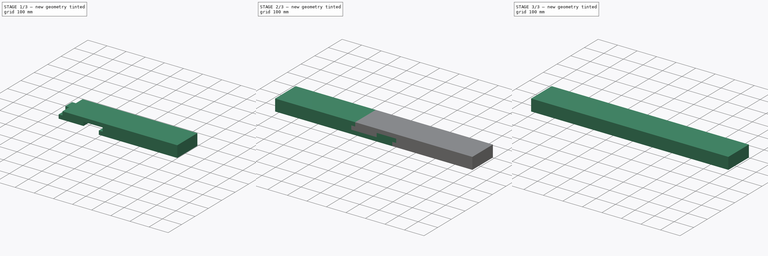
[diagram: build sequence overview — one tinted view per stage of 3, left to right]
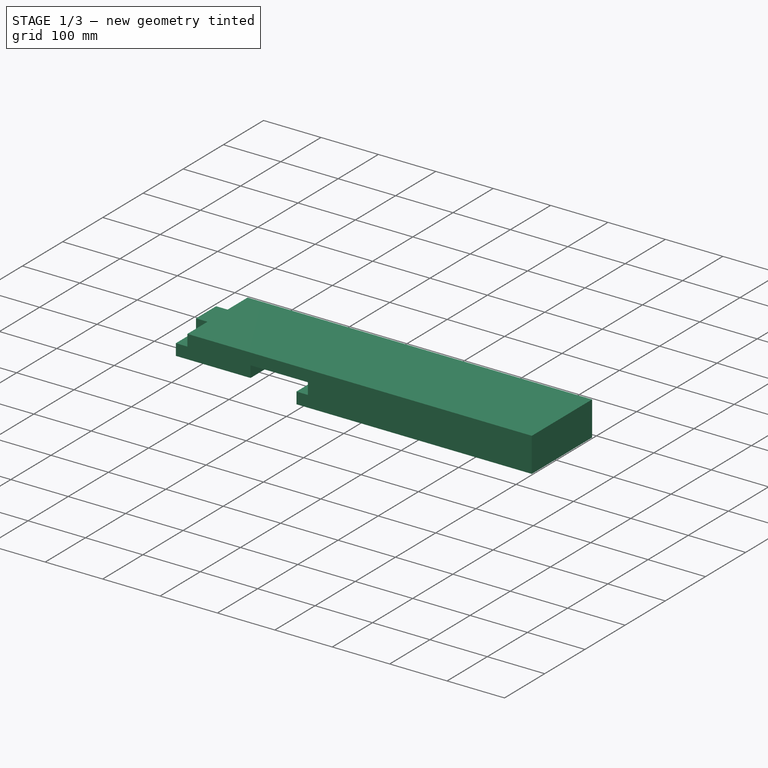
[diagram: stage 1 of 3 — iso view after this stage's code; geometry added in this stage tinted green]
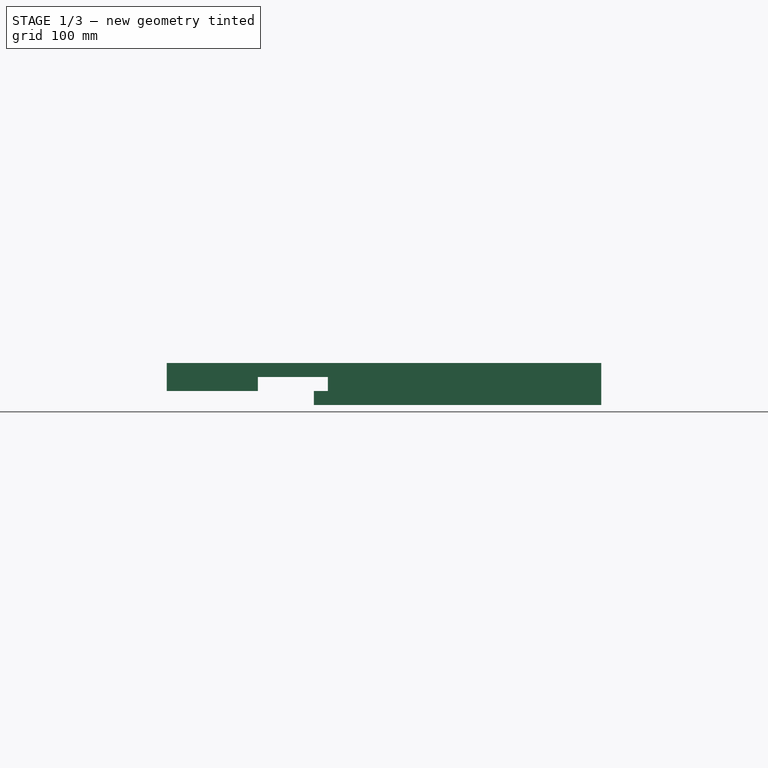
[diagram: stage 1 of 3 — front view after this stage's code; geometry added in this stage tinted green]
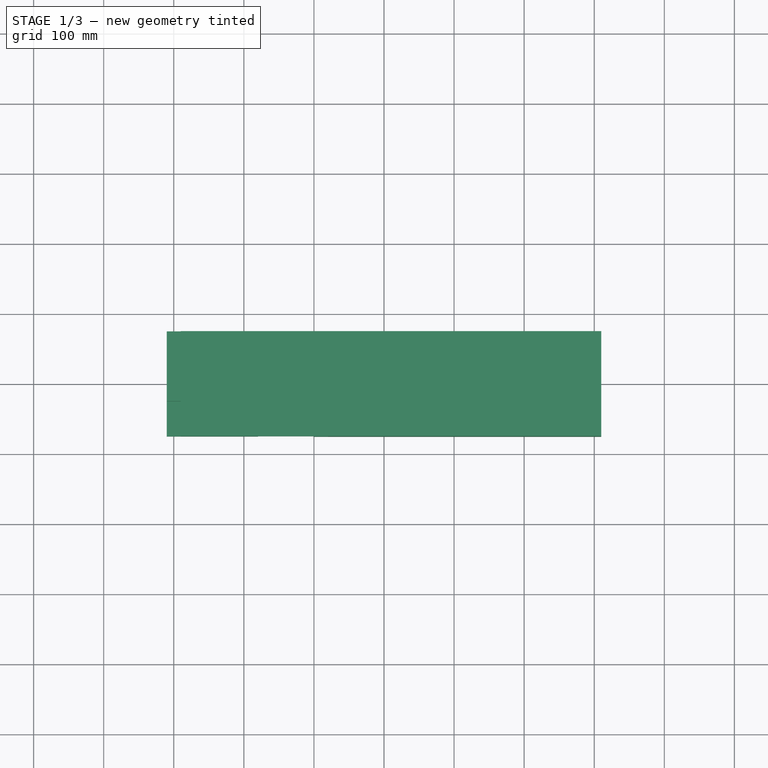
[diagram: stage 1 of 3 — top view after this stage's code; geometry added in this stage tinted green]
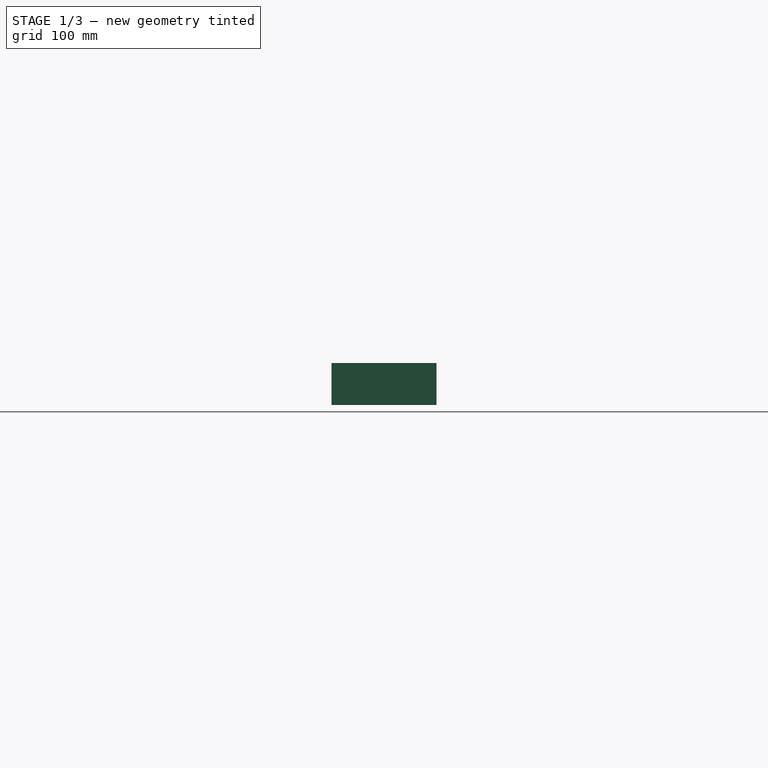
[diagram: stage 1 of 3 — right view after this stage's code; geometry added in this stage tinted green]
FCSTD DOCUMENT  (FreeCAD 0.18R13516 (Git))
Label: VIGA MADEIRA 2
License: All rights reserved
LicenseURL: http://en.wikipedia.org/wiki/All_rights_reserved
objects: Part::Box×2, PartDesign::FeatureBase×2, Sketcher::SketchObject×1, PartDesign::Pad×1, PartDesign::Body×1, Part::MultiFuse×1, Part::Cut×1, Part::Feature×1
note: 11 computed .brp shape members not serialized (recipe doc carries the construction recipe); baked Part::Feature solids carry a one-line shape summary decoded from their .brp

FEATURE [Part::Feature] Cut001
  shape: bbox 620 x 150 x 60 mm, 22 faces (baked)
FEATURE [PartDesign::FeatureBase] Clone001
  BaseFeature = -> Cut001
  Placement = pos=(-190,0,60) rot=(0,1,0;3.14159rad)
FEATURE [Part::Box] Box001  label="Cube001"
  AttacherType = Attacher::AttachEngine3D
  Height = 20
  Length = 30
  Placement = pos=(-110,-75,20) rot=(0,0,1;0rad)
  Width = 150
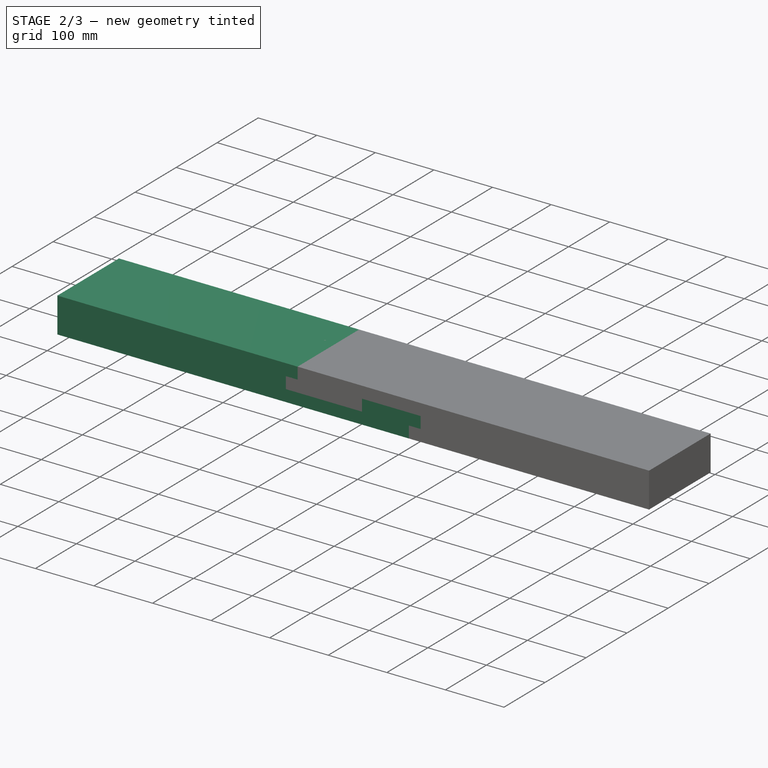
[diagram: stage 2 of 3 — iso view after this stage's code; geometry added in this stage tinted green]
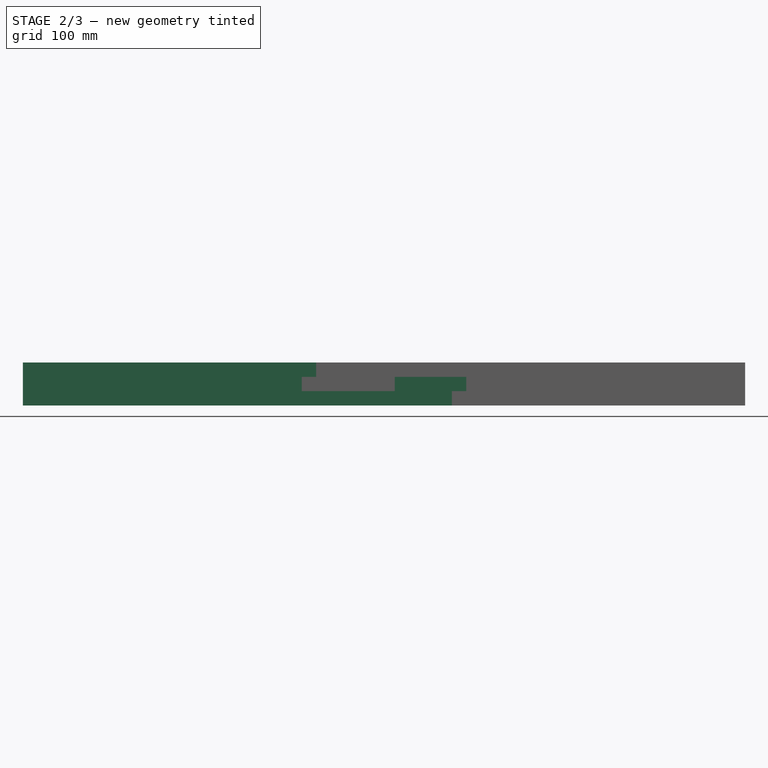
[diagram: stage 2 of 3 — front view after this stage's code; geometry added in this stage tinted green]
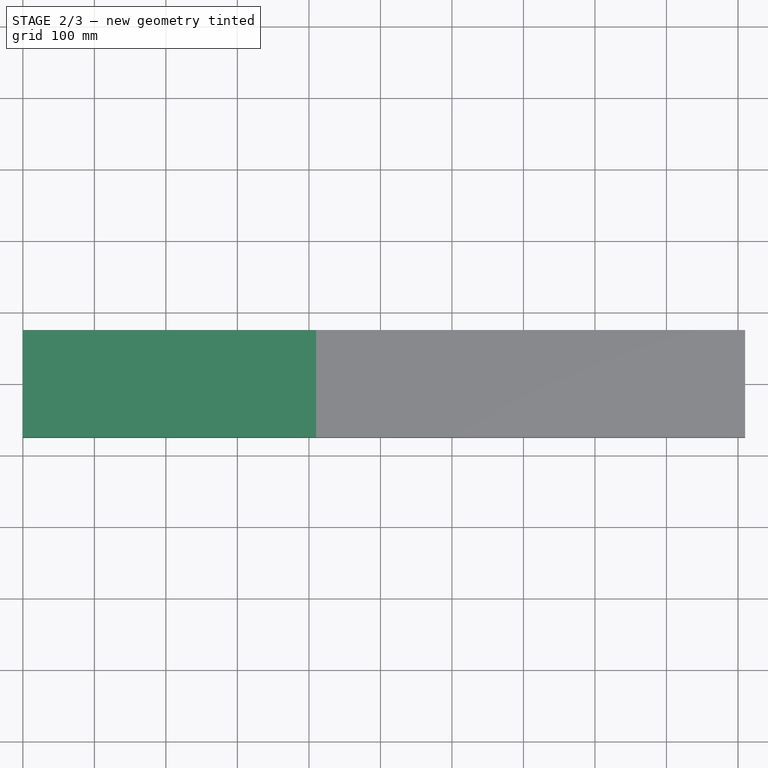
[diagram: stage 2 of 3 — top view after this stage's code; geometry added in this stage tinted green]
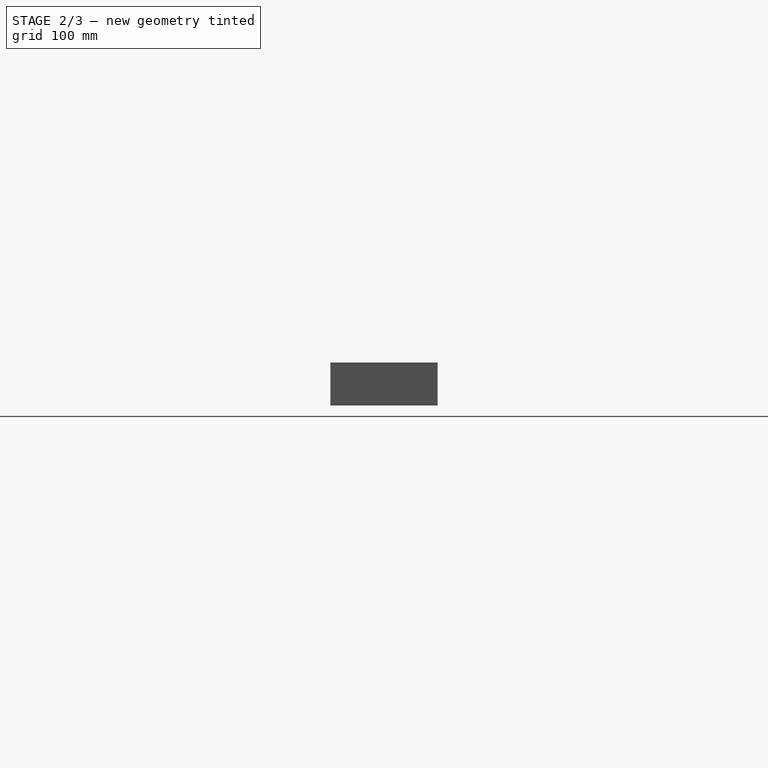
[diagram: stage 2 of 3 — right view after this stage's code; geometry added in this stage tinted green]
FEATURE [Sketcher::SketchObject] Sketch
  MapMode = 5
  Placement = pos=(0,0,0) rot=(1,0,0;1.5708rad)
  Support = -> [XZ_Plane]
  sketch-geometry (12):
    g0: LineSegment StartX=0 StartY=0 StartZ=0 EndX=0 EndY=20 EndZ=0
    g1: LineSegment StartX=20 StartY=40 StartZ=0 EndX=-80 EndY=40 EndZ=0
    g2: LineSegment StartX=-80 StartY=40 StartZ=0 EndX=-80 EndY=20 EndZ=0
    g3: LineSegment StartX=-80 StartY=20 StartZ=0 EndX=-210 EndY=20 EndZ=0
    g4: LineSegment StartX=-210 StartY=20 StartZ=0 EndX=-210 EndY=40 EndZ=0
    g5: LineSegment StartX=-210 StartY=40 StartZ=0 EndX=-190 EndY=40 EndZ=0
    g6: LineSegment StartX=-190 StartY=40 StartZ=0 EndX=-190 EndY=60 EndZ=0
    g7: LineSegment StartX=-190 StartY=60 StartZ=0 EndX=-600 EndY=60 EndZ=0
    g8: LineSegment StartX=-600 StartY=60 StartZ=0 EndX=-600 EndY=0 EndZ=0
    g9: LineSegment StartX=-600 StartY=0 StartZ=0 EndX=0 EndY=0 EndZ=0
    g10: LineSegment StartX=20 StartY=40 StartZ=0 EndX=20 EndY=20 EndZ=0
    g11: LineSegment StartX=20 StartY=20 StartZ=0 EndX=0 EndY=20 EndZ=0
  constraints (35):
    c: Coincident(g-1,g0)
    c: Vertical(g0)
    c: Horizontal(g1)
    c: Coincident(g1,g2)
    c: Vertical(g2)
    c: Coincident(g2,g3)
    c: Horizontal(g3)
    c: Coincident(g3,g4)
    c: Vertical(g4)
    c: Coincident(g4,g5)
    c: Horizontal(g5)
    c: Coincident(g5,g6)
    c: Vertical(g6)
    c: Coincident(g6,g7)
    c: Horizontal(g7)
    c: Coincident(g7,g8)
    c: PointOnObject(g8,g-1)
    c: Coincident(g8,g9)
    c: Coincident(g9,g0)
    c: Vertical(g8)
    c: Equal(g4,g2)
    c: Equal(g4,g5)
    c: Equal(g5,g6)
    c: DistanceY(g8,g8) = 60
    c: DistanceX(g9,g9) = 600
    c: DistanceX(g1,g1) = 100
    c: DistanceX(g3,g3) = 130
    c: Coincident(g1,g10)
    c: Vertical(g10)
    c: Coincident(g10,g11)
    c: Coincident(g11,g0)
    c: Horizontal(g11)
    c: Equal(g2,g10)
    c: Equal(g10,g11)
    c: Equal(g10,g0)
FEATURE [PartDesign::Pad] Pad
  Length = 150
  Length2 = 100
  Midplane = true
  Placement = pos=(0,0,0) rot=(1,0,0;1.5708rad)
  Profile = -> Sketch
  Type = 0
FEATURE [PartDesign::Body] Body
  Group = -> [Sketch,Pad]
  Origin = -> Origin
  Tip = -> Pad
FEATURE [Part::Box] Box  label="Cube"
  AttacherType = Attacher::AttachEngine3D
  Height = 20
  Length = 20
  Placement = pos=(0,-25,0) rot=(0,0,1;0rad)
  Width = 50
FEATURE [Part::MultiFuse] Fusion
  Shapes = -> [Pad,Box]
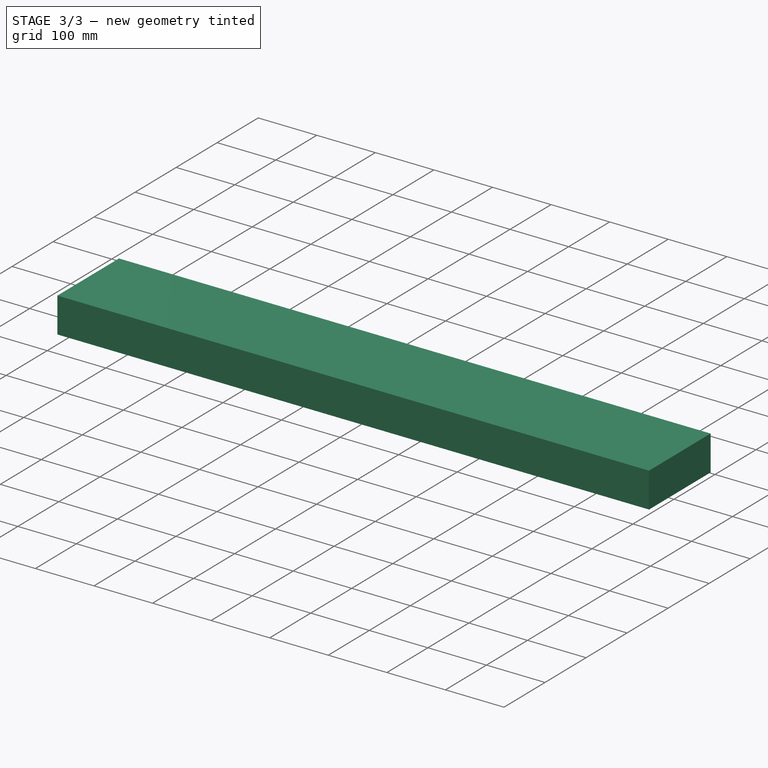
[diagram: stage 3 of 3 — iso view after this stage's code; geometry added in this stage tinted green]
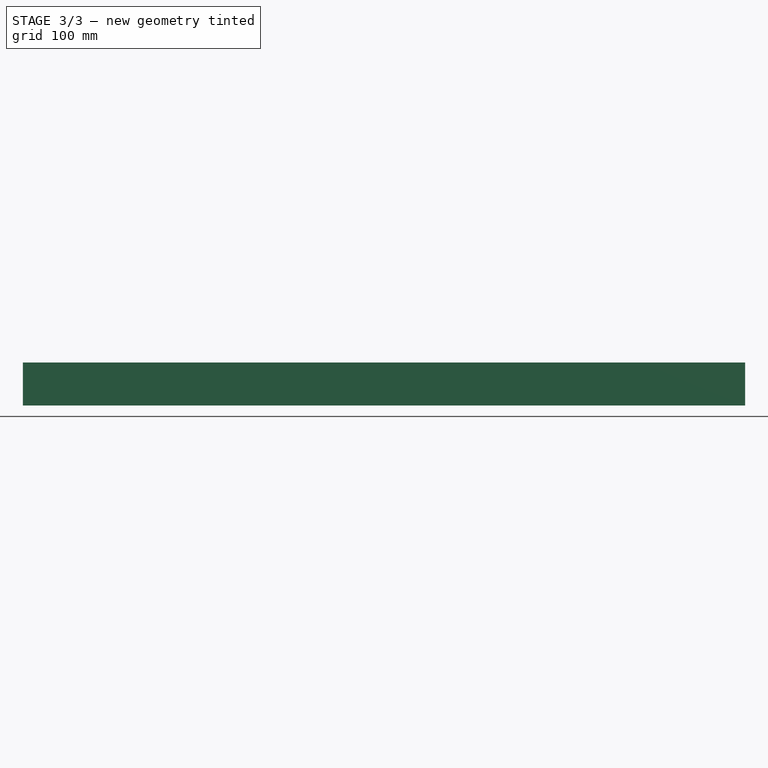
[diagram: stage 3 of 3 — front view after this stage's code; geometry added in this stage tinted green]
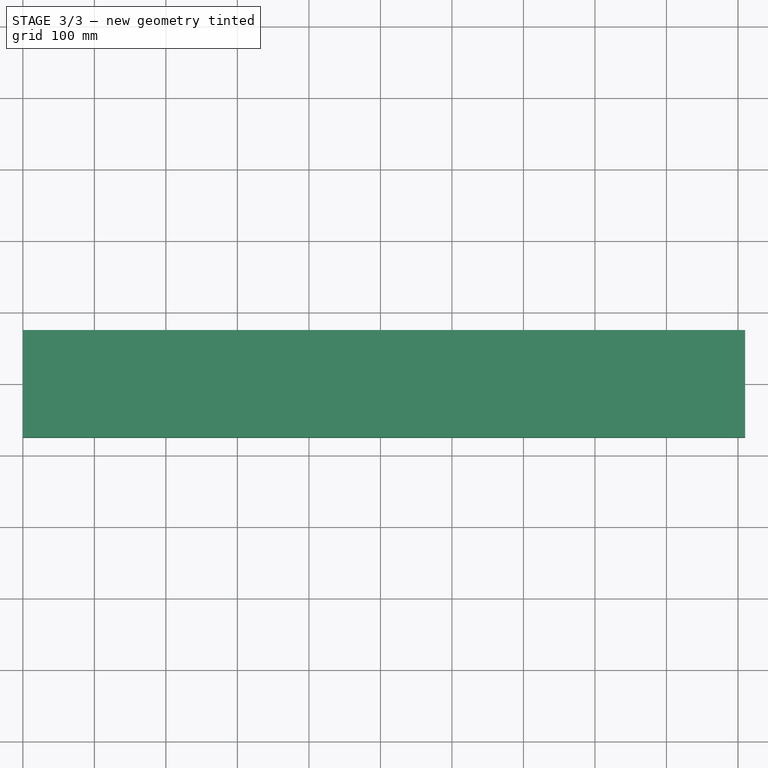
[diagram: stage 3 of 3 — top view after this stage's code; geometry added in this stage tinted green]
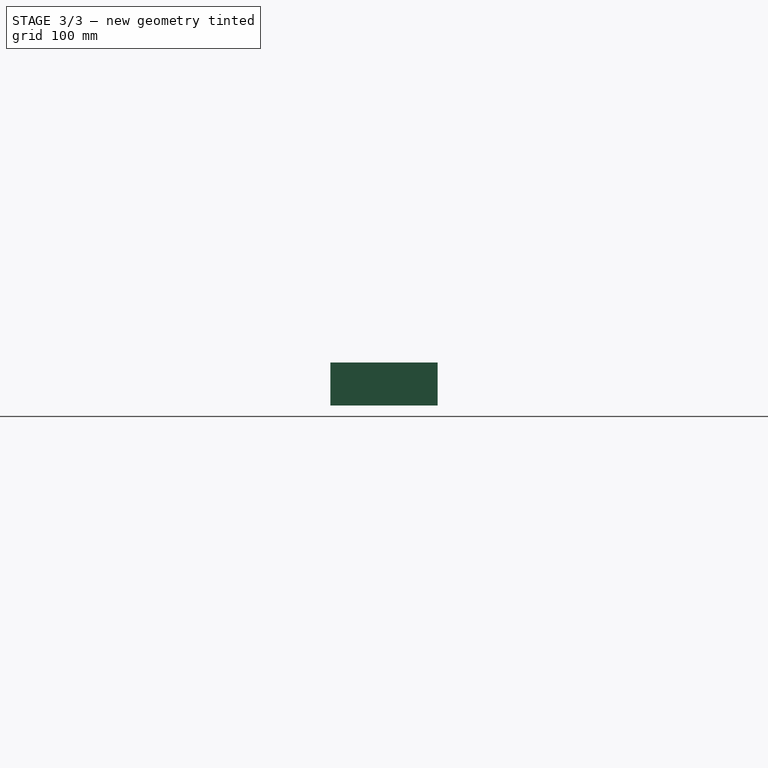
[diagram: stage 3 of 3 — right view after this stage's code; geometry added in this stage tinted green]
FEATURE [PartDesign::FeatureBase] Clone
  BaseFeature = -> Box
  Placement = pos=(-210,-25,40) rot=(0,0,1;0rad)
FEATURE [Part::Cut] Cut
  Base = -> Fusion
  Tool = -> Clone
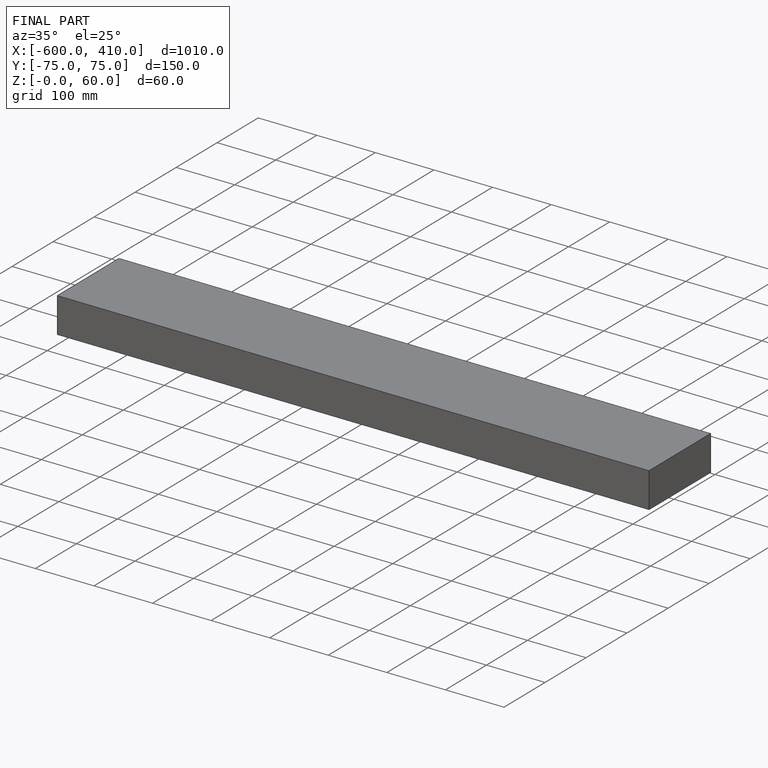
[diagram: finished part — iso view with bounding-box wireframe]
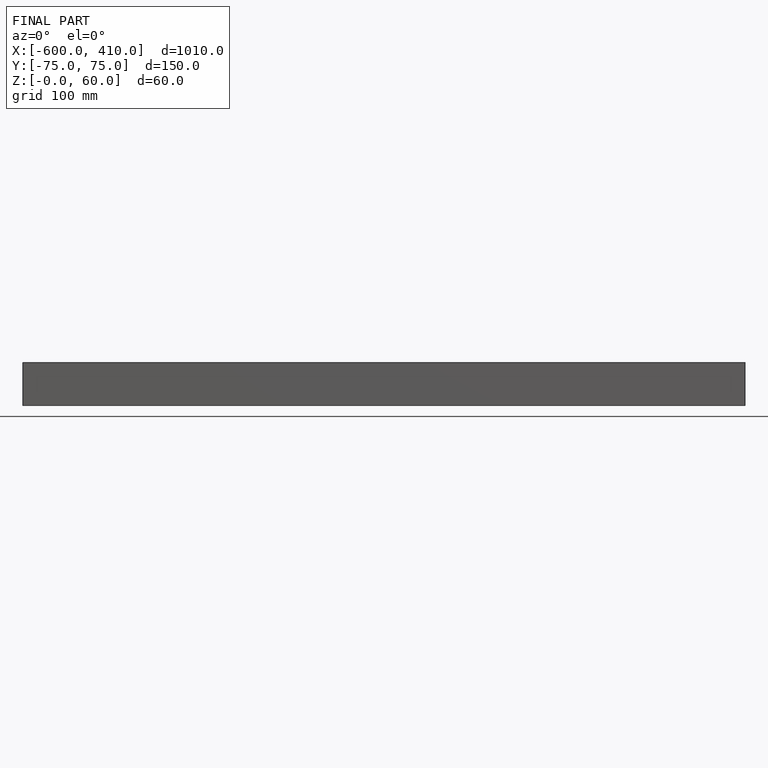
[diagram: finished part — front view with bounding-box wireframe]
